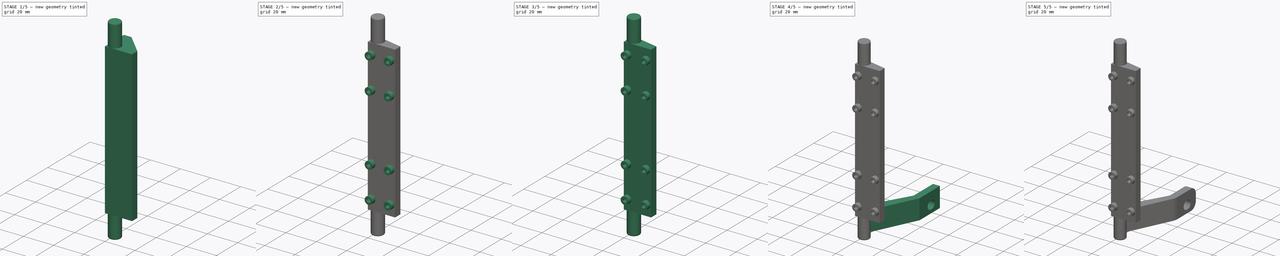
[diagram: build sequence overview — one tinted view per stage of 5, left to right]
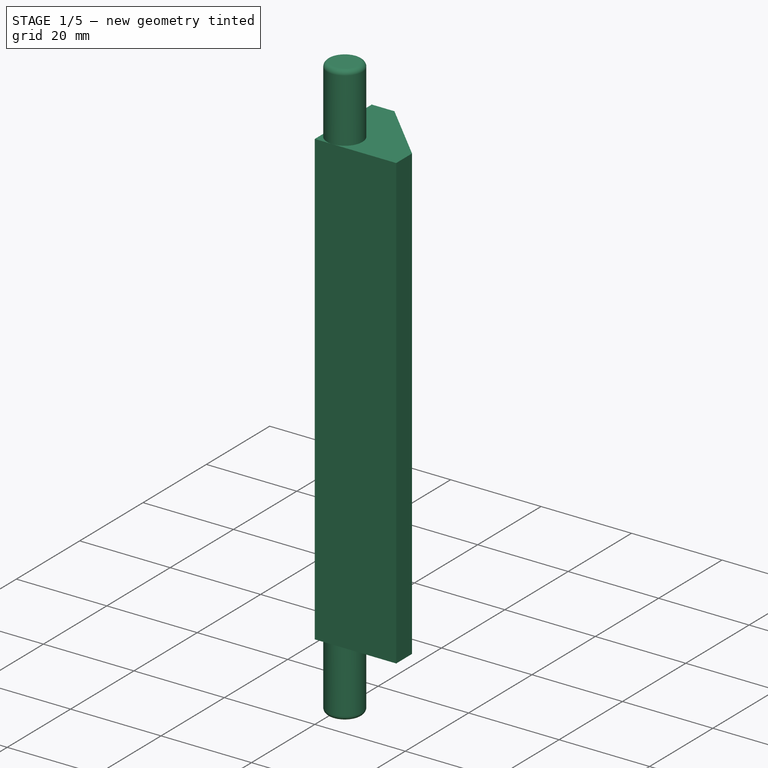
[diagram: stage 1 of 5 — iso view after this stage's code; geometry added in this stage tinted green]
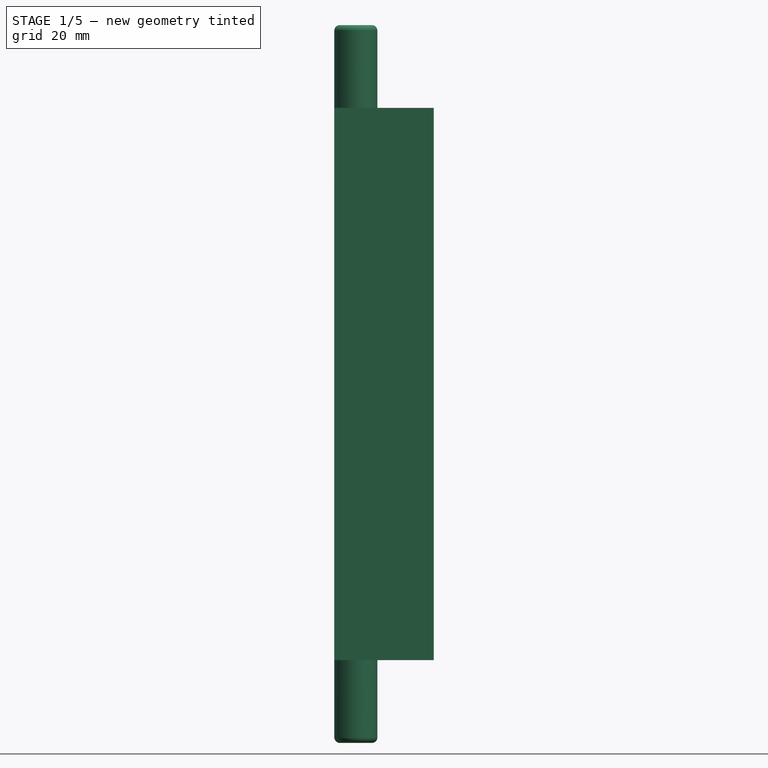
[diagram: stage 1 of 5 — front view after this stage's code; geometry added in this stage tinted green]
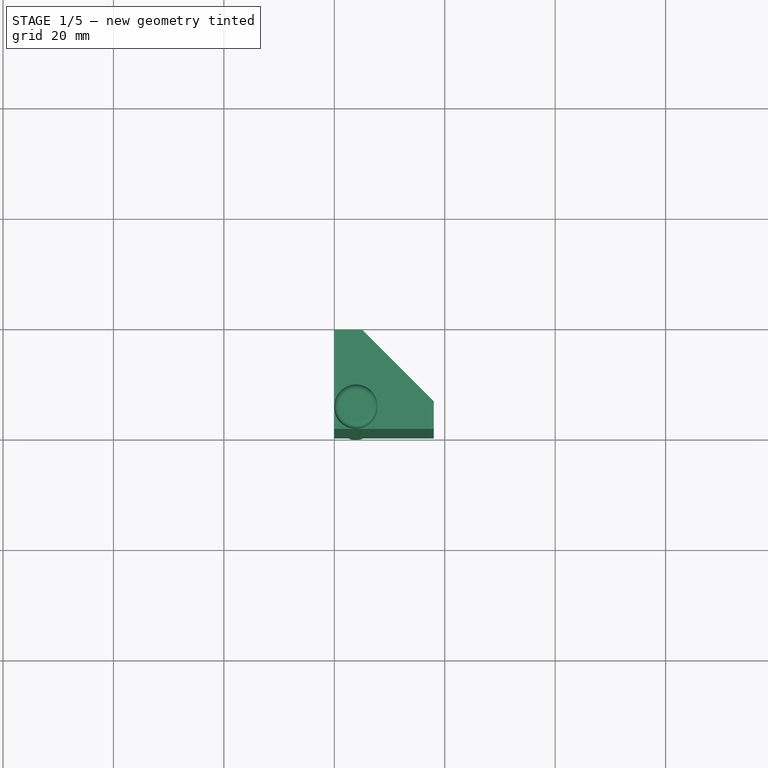
[diagram: stage 1 of 5 — top view after this stage's code; geometry added in this stage tinted green]
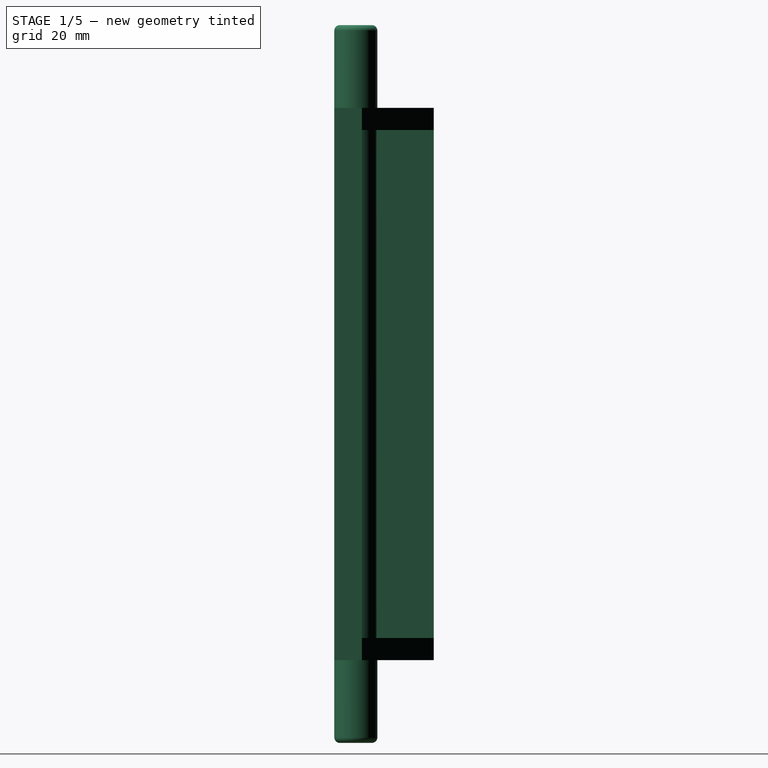
[diagram: stage 1 of 5 — right view after this stage's code; geometry added in this stage tinted green]
FCSTD DOCUMENT  (FreeCAD 0.17R9822 (Git))
Label: StereoVisionCarCameraMount
License: All rights reserved
LicenseURL: http://en.wikipedia.org/wiki/All_rights_reserved
objects: Sketcher::SketchObject×9, PartDesign::Pocket×9, PartDesign::Pad×5, PartDesign::Fillet×5, PartDesign::Body×1
note: 43 computed .brp shape members not serialized (recipe doc carries the construction recipe); baked Part::Feature solids carry a one-line shape summary decoded from their .brp

FEATURE [Sketcher::SketchObject] Sketch
  MapMode = 5
  Support = -> [XY_Plane]
  sketch-geometry (5):
    g0: LineSegment StartX=0 StartY=0 StartZ=0 EndX=18 EndY=0 EndZ=0
    g1: LineSegment StartX=0 StartY=18 StartZ=0 EndX=0 EndY=0 EndZ=0
    g2: LineSegment StartX=0 StartY=18 StartZ=0 EndX=5 EndY=18 EndZ=0
    g3: LineSegment StartX=5 StartY=18 StartZ=0 EndX=18 EndY=5 EndZ=0
    g4: LineSegment StartX=18 StartY=5 StartZ=0 EndX=18 EndY=0 EndZ=0
  constraints (14):
    c: Coincident(g-1,g0)
    c: PointOnObject(g0,g-1)
    c: Coincident(g1,g0)
    c: Vertical(g1)
    c: Coincident(g1,g2)
    c: Horizontal(g2)
    c: Coincident(g2,g3)
    c: Coincident(g3,g4)
    c: Coincident(g4,g0)
    c: Vertical(g4)
    c: Angle(g3) = -0.785398
    c: Equal(g2,g4)
    c: Distance(g2) = 5
    c: Distance(g1) = 18
FEATURE [PartDesign::Pad] Pad
  Length = 100
  Length2 = 100
  Profile = -> Sketch
  Type = 0
FEATURE [Sketcher::SketchObject] Sketch001
  ExternalGeometry = -> [Pad]
  MapMode = 5
  Placement = pos=(0,18,0) rot=(0,0.707107,0.707107;3.14159rad)
  Support = -> [Pad]
  sketch-geometry (6):
    g0: LineSegment StartX=-5 StartY=96 StartZ=0 EndX=-18 EndY=96 EndZ=0
    g1: LineSegment StartX=-18 StartY=96 StartZ=0 EndX=-18 EndY=4 EndZ=0
    g2: LineSegment StartX=-18 StartY=4 StartZ=0 EndX=-5 EndY=4 EndZ=0
    g3: LineSegment StartX=-5 StartY=4 StartZ=0 EndX=-5 EndY=96 EndZ=0
    g4: LineSegment [constr] StartX=-18 StartY=100 StartZ=0 EndX=-18 EndY=96 EndZ=0
    g5: LineSegment [constr] StartX=-18 StartY=0 StartZ=0 EndX=-18 EndY=4 EndZ=0
  constraints (18):
    c: Coincident(g0,g1)
    c: Coincident(g1,g2)
    c: Coincident(g2,g3)
    c: Coincident(g3,g0)
    c: Horizontal(g0)
    c: Horizontal(g2)
    c: Vertical(g1)
    c: Vertical(g3)
    c: PointOnObject(g0,g-3)
    c: Coincident(g4,g-4)
    c: PointOnObject(g4,g0)
    c: Coincident(g5,g-5)
    c: PointOnObject(g5,g2)
    c: Vertical(g5)
    c: Vertical(g4)
    c: Equal(g4,g5)
    c: Distance(g5) = 4
    c: PointOnObject(g1,g-6)
FEATURE [PartDesign::Pocket] Pocket
  BaseFeature = -> Pad
  Length = 13
  Profile = -> Sketch001
  Type = 0
FEATURE [Sketcher::SketchObject] Sketch002
  ExternalGeometry = -> [Pocket]
  MapMode = 5
  Placement = pos=(0,0,100) rot=(0,0,1;0rad)
  Support = -> [Pocket]
  sketch-geometry (1):
    g0: Circle CenterX=3.9 CenterY=3.9 CenterZ=0 NormalX=0 NormalY=0 NormalZ=1 Radius=3.9
  constraints (3):
    c: Radius(g0) = 3.9
    c: Tangent(g0,g-3)
    c: Tangent(g0,g-4)
FEATURE [PartDesign::Pad] Pad001
  BaseFeature = -> Pocket
  Length = 15
  Length2 = 115
  Profile = -> Sketch002
  Type = 4
FEATURE [PartDesign::Fillet] Fillet
  Base = -> Pad001 [Edge43,Edge31]
  BaseFeature = -> Pad001
  Radius = 1
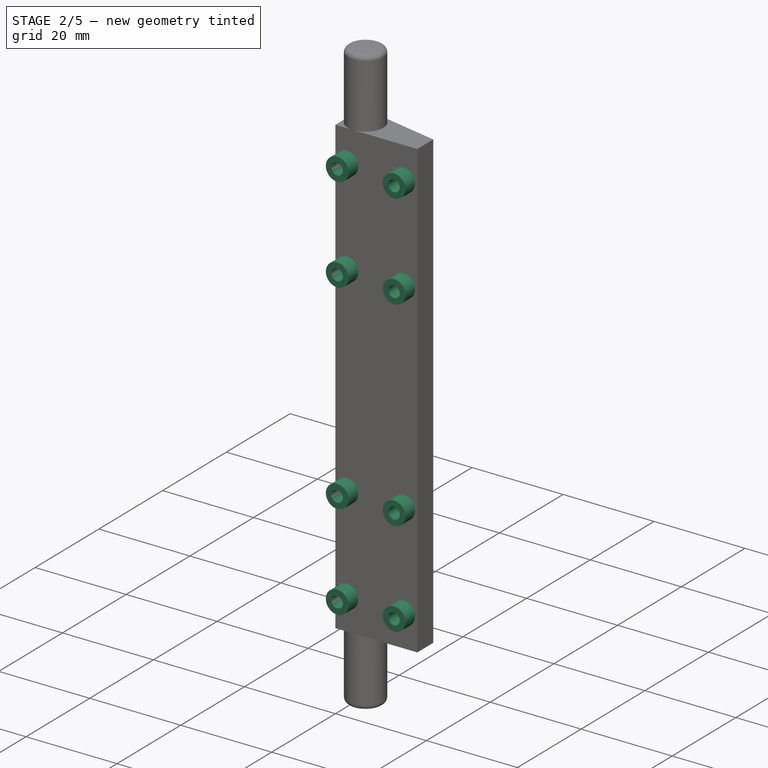
[diagram: stage 2 of 5 — iso view after this stage's code; geometry added in this stage tinted green]
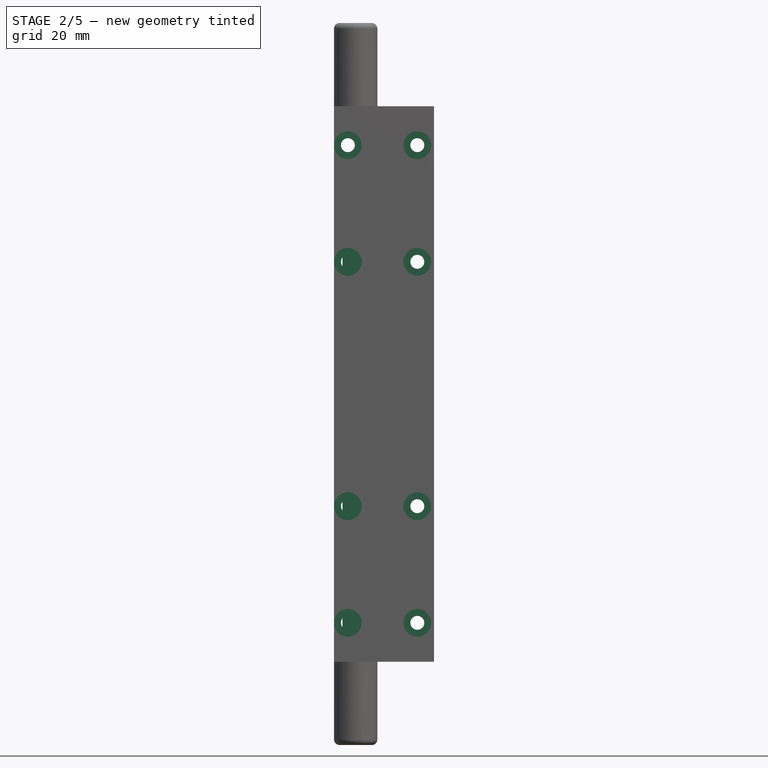
[diagram: stage 2 of 5 — front view after this stage's code; geometry added in this stage tinted green]
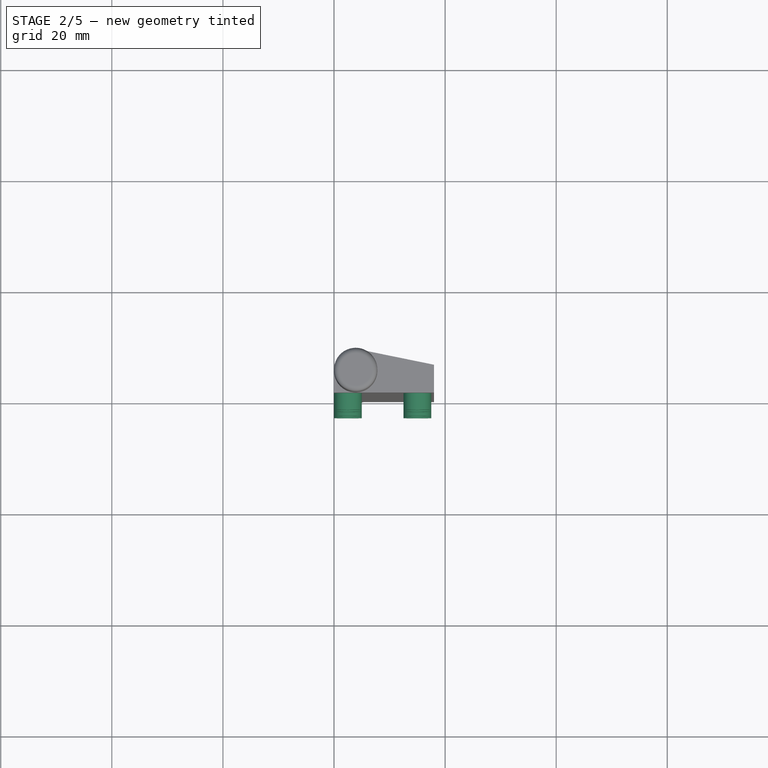
[diagram: stage 2 of 5 — top view after this stage's code; geometry added in this stage tinted green]
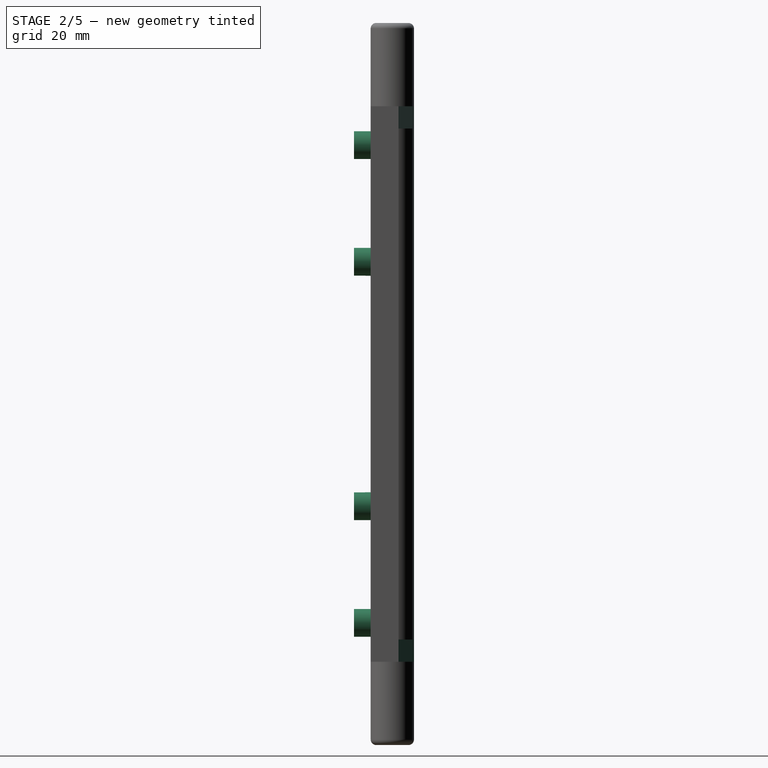
[diagram: stage 2 of 5 — right view after this stage's code; geometry added in this stage tinted green]
FEATURE [Sketcher::SketchObject] Sketch003
  ExternalGeometry = -> [Fillet]
  MapMode = 5
  Placement = pos=(0,0,0) rot=(1,0,0;1.5708rad)
  Support = -> [Fillet]
  sketch-geometry (19):
    g0: LineSegment [constr] StartX=2.5 StartY=93 StartZ=0 EndX=15 EndY=93 EndZ=0
    g1: LineSegment [constr] StartX=15 StartY=93 StartZ=0 EndX=15 EndY=72 EndZ=0
    g2: LineSegment [constr] StartX=15 StartY=72 StartZ=0 EndX=2.5 EndY=72 EndZ=0
    g3: LineSegment [constr] StartX=2.5 StartY=72 StartZ=0 EndX=2.5 EndY=93 EndZ=0
    g4: LineSegment [constr] StartX=2.5 StartY=28 StartZ=0 EndX=15 EndY=28 EndZ=0
    g5: LineSegment [constr] StartX=15 StartY=28 StartZ=0 EndX=15 EndY=7 EndZ=0
    g6: LineSegment [constr] StartX=15 StartY=7 StartZ=0 EndX=2.5 EndY=7 EndZ=0
    g7: LineSegment [constr] StartX=2.5 StartY=7 StartZ=0 EndX=2.5 EndY=28 EndZ=0
    g8: Circle CenterX=2.5 CenterY=93 CenterZ=0 NormalX=0 NormalY=0 NormalZ=1 Radius=2.5
    g9: Circle CenterX=15 CenterY=93 CenterZ=0 NormalX=0 NormalY=0 NormalZ=1 Radius=2.5
    g10: Circle CenterX=15 CenterY=72 CenterZ=0 NormalX=0 NormalY=0 NormalZ=1 Radius=2.5
    g11: Circle CenterX=2.5 CenterY=72 CenterZ=0 NormalX=0 NormalY=0 NormalZ=1 Radius=2.5
    g12: Circle CenterX=15 CenterY=7 CenterZ=0 NormalX=0 NormalY=0 NormalZ=1 Radius=2.5
    g13: Circle CenterX=15 CenterY=28 CenterZ=0 NormalX=0 NormalY=0 NormalZ=1 Radius=2.5
    g14: Circle CenterX=2.5 CenterY=7 CenterZ=0 NormalX=0 NormalY=0 NormalZ=1 Radius=2.5
    g15: Circle CenterX=2.5 CenterY=28 CenterZ=0 NormalX=0 NormalY=0 NormalZ=1 Radius=2.5
    g16: LineSegment [constr] StartX=2.5 StartY=28 StartZ=0 EndX=2.5 EndY=72 EndZ=0
    g17: LineSegment [constr] StartX=2.5 StartY=7 StartZ=0 EndX=2.5 EndY=0 EndZ=0
    g18: LineSegment [constr] StartX=2.5 StartY=93 StartZ=0 EndX=2.5 EndY=100 EndZ=0
  constraints (48):
    c: Coincident(g0,g1)
    c: Coincident(g1,g2)
    c: Coincident(g2,g3)
    c: Coincident(g3,g0)
    c: Horizontal(g0)
    c: Horizontal(g2)
    c: Vertical(g1)
    c: Vertical(g3)
    c: Coincident(g4,g5)
    c: Coincident(g5,g6)
    c: Coincident(g6,g7)
    c: Coincident(g7,g4)
    c: Horizontal(g4)
    c: Horizontal(g6)
    c: Vertical(g5)
    c: Vertical(g7)
    c: Coincident(g8,g0)
    c: Coincident(g9,g0)
    c: Coincident(g10,g1)
    c: Coincident(g11,g2)
    c: Coincident(g12,g5)
    c: Coincident(g14,g6)
    c: Coincident(g15,g4)
    c: Coincident(g4,g13)
    c: Radius(g12) = 2.5
    c: Equal(g12,g14)
    c: Equal(g12,g15)
    c: Equal(g12,g13)
    c: Equal(g12,g10)
    c: Equal(g12,g11)
    c: Equal(g12,g8)
    c: Equal(g12,g9)
    c: Equal(g4,g2)
    c: Equal(g5,g1)
    c: Coincident(g16,g4)
    c: Coincident(g16,g2)
    c: Vertical(g16)
    c: Coincident(g17,g6)
    c: PointOnObject(g17,g-5)
    c: Vertical(g17)
    c: Coincident(g18,g0)
    c: PointOnObject(g18,g-4)
    c: Vertical(g18)
    c: Equal(g18,g17)
    c: Tangent(g14,g-3)
    c: Distance(g4) = 12.5
    c: Distance(g5) = 21
    c: Distance(g16) = 44
FEATURE [PartDesign::Pad] Pad002
  BaseFeature = -> Fillet
  Length = 3
  Length2 = 100
  Profile = -> Sketch003
  Type = 0
FEATURE [Sketcher::SketchObject] Sketch004
  ExternalGeometry = -> [Pad002]
  MapMode = 5
  Placement = pos=(0,-3,0) rot=(1,0,0;1.5708rad)
  Support = -> [Pad002]
  sketch-geometry (8):
    g0: Circle CenterX=2.5 CenterY=93 CenterZ=0 NormalX=0 NormalY=0 NormalZ=1 Radius=1.25
    g1: Circle CenterX=15 CenterY=93 CenterZ=0 NormalX=0 NormalY=0 NormalZ=1 Radius=1.25
    g2: Circle CenterX=2.5 CenterY=72 CenterZ=0 NormalX=0 NormalY=0 NormalZ=1 Radius=1.25
    g3: Circle CenterX=15 CenterY=72 CenterZ=0 NormalX=0 NormalY=0 NormalZ=1 Radius=1.25
    g4: Circle CenterX=15 CenterY=28 CenterZ=0 NormalX=0 NormalY=0 NormalZ=1 Radius=1.25
    g5: Circle CenterX=2.5 CenterY=28 CenterZ=0 NormalX=0 NormalY=0 NormalZ=1 Radius=1.25
    g6: Circle CenterX=15 CenterY=7 CenterZ=0 NormalX=0 NormalY=0 NormalZ=1 Radius=1.25
    g7: Circle CenterX=2.5 CenterY=7 CenterZ=0 NormalX=0 NormalY=0 NormalZ=1 Radius=1.25
  constraints (12):
    c: Coincident(g0,g-10)
    c: Coincident(g1,g-9)
    c: Coincident(g2,g-8)
    c: Coincident(g3,g-7)
    c: Coincident(g4,g-6)
    c: Coincident(g5,g-5)
    c: Coincident(g6,g-3)
    c: Coincident(g7,g-4)
    c: Radius(g0) = 1.25
    c: Equal(g0,g1)
    c: Equal(g0, g3-g7) x5
    c: Equal(g0,g2)
FEATURE [PartDesign::Pocket] Pocket001
  BaseFeature = -> Pad002
  Length = 10
  Profile = -> Sketch004
  Type = 0
FEATURE [Sketcher::SketchObject] Sketch005
  ExternalGeometry = -> [Pocket001]
  MapMode = 5
  Placement = pos=(0,0,115) rot=(0,0,1;0rad)
  Support = -> [Pocket001]
  sketch-geometry (6):
    g0: LineSegment StartX=4.6806 StartY=7.72108 StartZ=0 EndX=18 EndY=5 EndZ=0
    g1: ArcOfCircle CenterX=3.9 CenterY=3.9 CenterZ=0 NormalX=0 NormalY=0 NormalZ=1 Radius=3.9 StartAngle=1.36928 EndAngle=3.14159
    g2: LineSegment StartX=-5 StartY=20 StartZ=0 EndX=18 EndY=20 EndZ=0
    g3: LineSegment StartX=18 StartY=5 StartZ=0 EndX=18 EndY=20 EndZ=0
    g4: LineSegment StartX=0 StartY=3.9 StartZ=0 EndX=-5 EndY=3.9 EndZ=0
    g5: LineSegment StartX=-5 StartY=3.9 StartZ=0 EndX=-5 EndY=20 EndZ=0
  constraints (17):
    c: PointOnObject(g0,g-5)
    c: Coincident(g0,g-4)
    c: Tangent(g0,g-5)
    c: Coincident(g1,g-6)
    c: Coincident(g1,g0)
    c: Horizontal(g2)
    c: Coincident(g3,g0)
    c: Coincident(g3,g2)
    c: Vertical(g3)
    c: Coincident(g4,g1)
    c: Horizontal(g4)
    c: Coincident(g5,g4)
    c: Coincident(g5,g2)
    c: Vertical(g5)
    c: Distance(g3) = 15
    c: Distance(g4) = 5
    c: Perpendicular(g-5,g4)
FEATURE [PartDesign::Pocket] Pocket002
  BaseFeature = -> Pocket001
  Length = 5
  Profile = -> Sketch005
  Type = 1
FEATURE [PartDesign::Pocket] Pocket003
  BaseFeature = -> Pocket002
  Length = 5
  Profile = -> Pocket002 [Face15]
  Type = 1
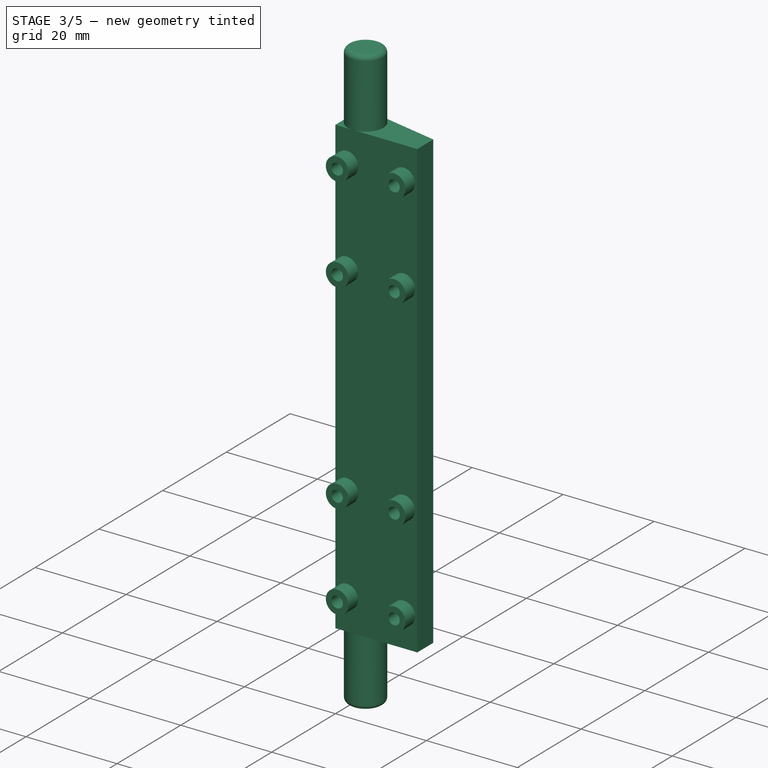
[diagram: stage 3 of 5 — iso view after this stage's code; geometry added in this stage tinted green]
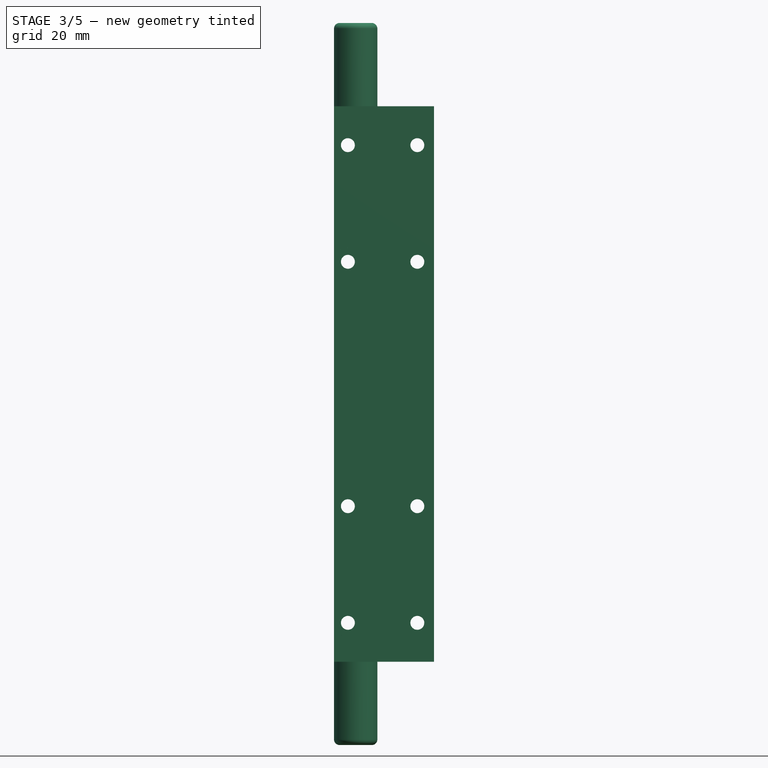
[diagram: stage 3 of 5 — front view after this stage's code; geometry added in this stage tinted green]
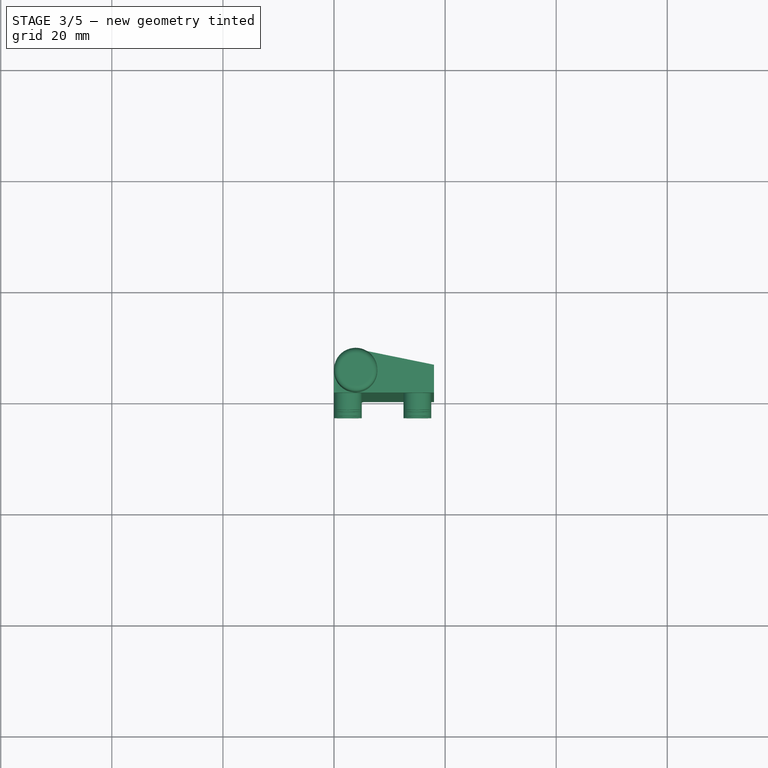
[diagram: stage 3 of 5 — top view after this stage's code; geometry added in this stage tinted green]
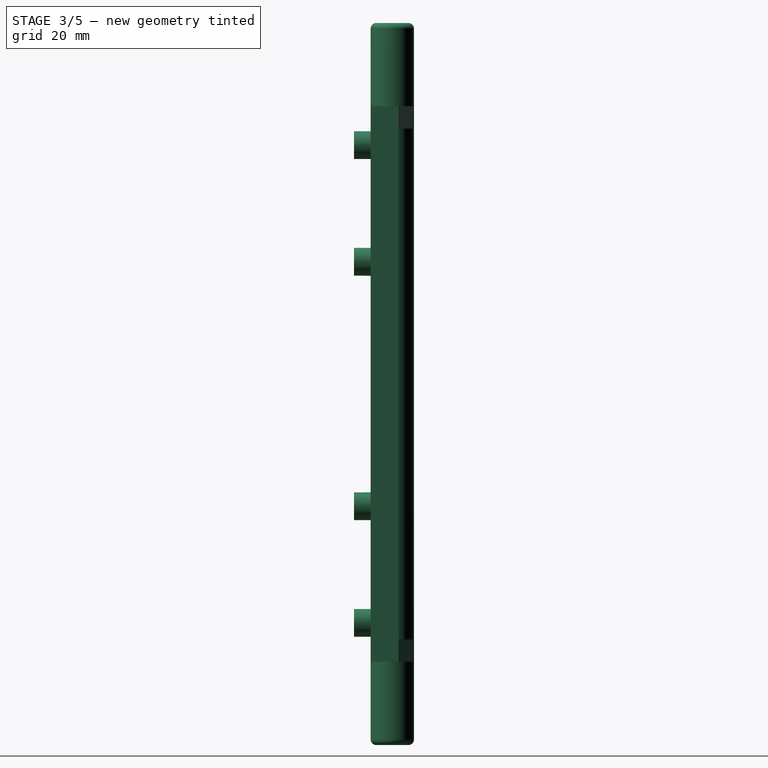
[diagram: stage 3 of 5 — right view after this stage's code; geometry added in this stage tinted green]
FEATURE [PartDesign::Pocket] Pocket004
  BaseFeature = -> Pocket003
  Length = 5
  Profile = -> Pocket003 [Face15]
  Type = 1
FEATURE [PartDesign::Pocket] Pocket005
  BaseFeature = -> Pocket004
  Length = 5
  Profile = -> Pocket004 [Face21]
  Type = 1
FEATURE [PartDesign::Pocket] Pocket006
  BaseFeature = -> Pocket005
  Length = 5
  Profile = -> Pocket005 [Face24]
  Type = 1
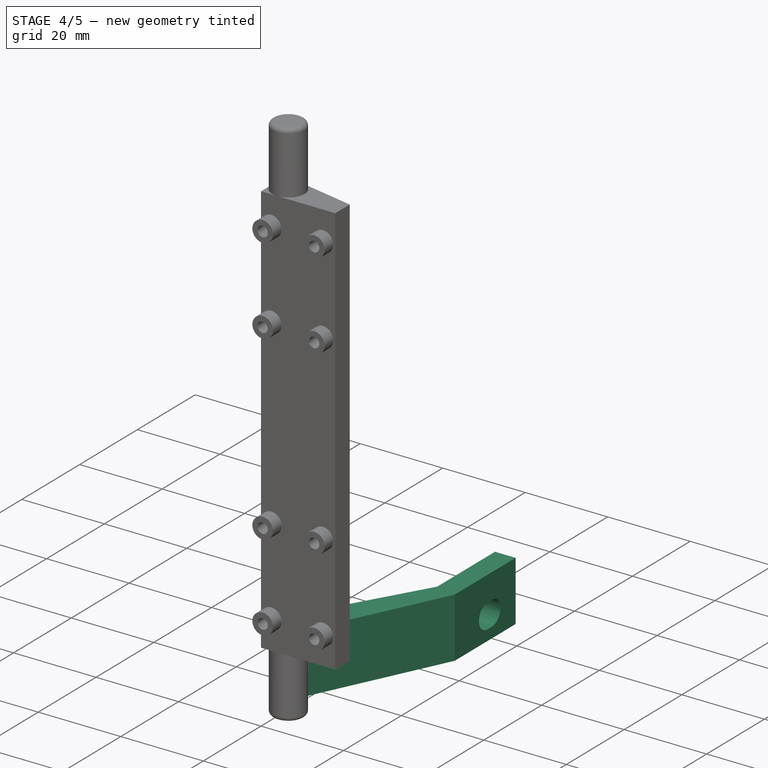
[diagram: stage 4 of 5 — iso view after this stage's code; geometry added in this stage tinted green]
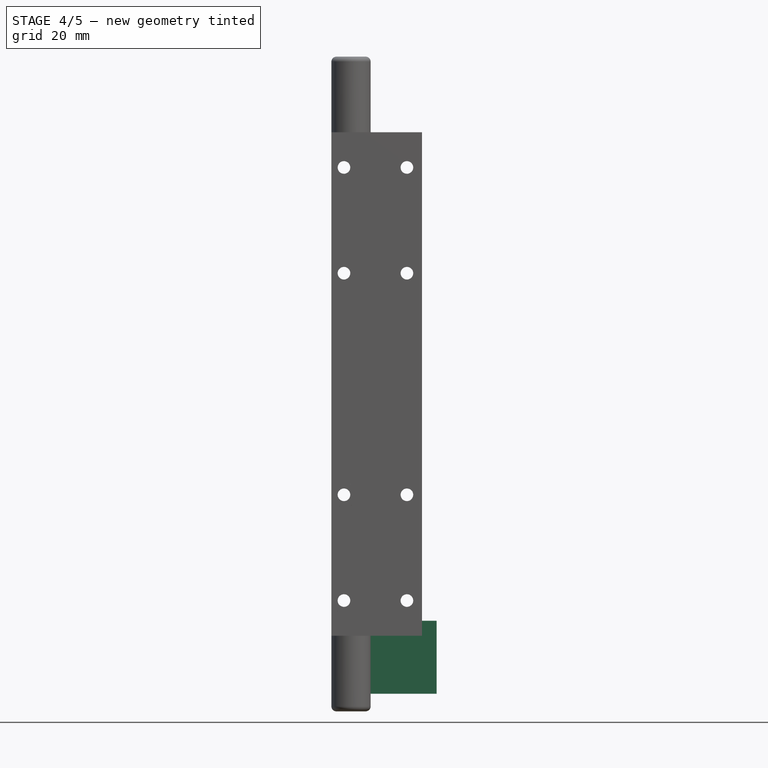
[diagram: stage 4 of 5 — front view after this stage's code; geometry added in this stage tinted green]
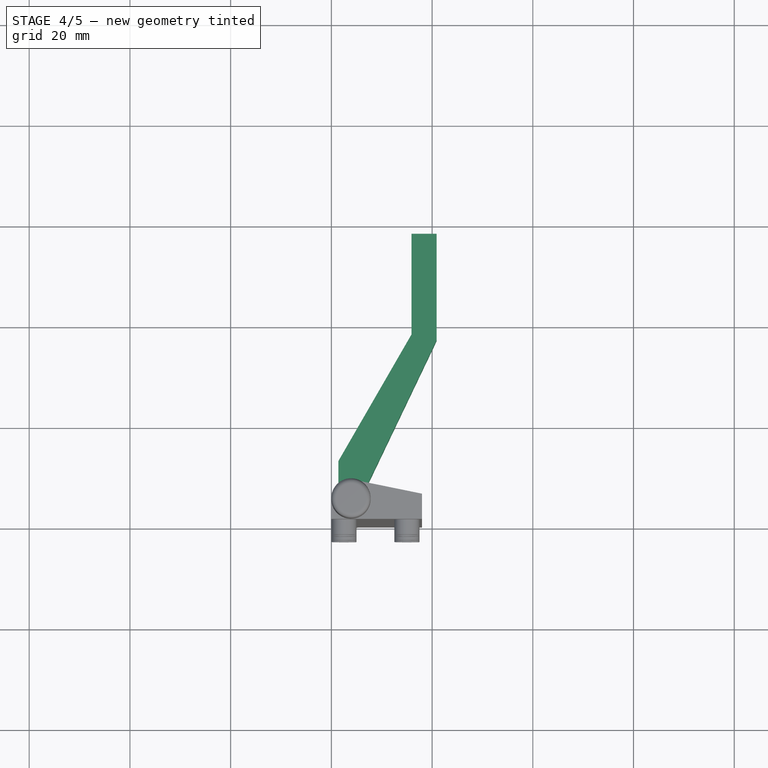
[diagram: stage 4 of 5 — top view after this stage's code; geometry added in this stage tinted green]
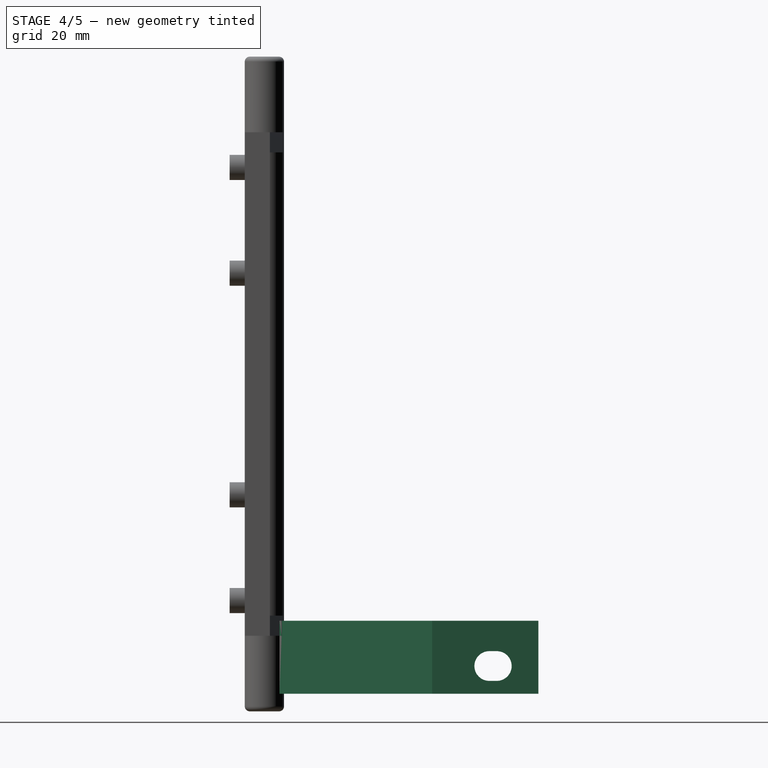
[diagram: stage 4 of 5 — right view after this stage's code; geometry added in this stage tinted green]
FEATURE [Sketcher::SketchObject] Sketch006
  ExternalGeometry = -> [Pocket006]
  MapMode = 5
  Placement = pos=(0,5,0) rot=(0,0.707107,0.707107;3.14159rad)
  Support = -> [Pocket006]
  sketch-geometry (12):
    g0: LineSegment StartX=-6.4 StartY=-11.5 StartZ=0 EndX=-1.4 EndY=-11.5 EndZ=0
    g1: LineSegment StartX=-1.4 StartY=-11.5 StartZ=0 EndX=-1.4 EndY=3 EndZ=0
    g2: LineSegment StartX=-1.4 StartY=3 StartZ=0 EndX=-6.4 EndY=3 EndZ=0
    g3: LineSegment StartX=-6.4 StartY=3 StartZ=0 EndX=-6.4 EndY=-11.5 EndZ=0
    g4: LineSegment [constr] StartX=-1.4 StartY=-11.5 StartZ=0 EndX=0 EndY=-11.5 EndZ=0
    g5: LineSegment [constr] StartX=0 StartY=-11.5 StartZ=0 EndX=0 EndY=0 EndZ=0
    g6: LineSegment [constr] StartX=0 StartY=0 StartZ=0 EndX=-1.4 EndY=0 EndZ=0
    g7: LineSegment [constr] StartX=-1.4 StartY=0 StartZ=0 EndX=-1.4 EndY=-11.5 EndZ=0
    g8: LineSegment [constr] StartX=-7.8 StartY=0 StartZ=0 EndX=-6.4 EndY=0 EndZ=0
    g9: LineSegment [constr] StartX=-6.4 StartY=0 StartZ=0 EndX=-6.4 EndY=-11.5 EndZ=0
    g10: LineSegment [constr] StartX=-6.4 StartY=-11.5 StartZ=0 EndX=-7.8 EndY=-11.5 EndZ=0
    g11: LineSegment [constr] StartX=-7.8 StartY=-11.5 StartZ=0 EndX=-7.8 EndY=0 EndZ=0
  constraints (32):
    c: Coincident(g0,g1)
    c: Coincident(g1,g2)
    c: Coincident(g2,g3)
    c: Coincident(g3,g0)
    c: Horizontal(g0)
    c: Horizontal(g2)
    c: Vertical(g1)
    c: Vertical(g3)
    c: Coincident(g4,g5)
    c: Coincident(g5,g6)
    c: Coincident(g6,g7)
    c: Coincident(g7,g4)
    c: Horizontal(g4)
    c: Horizontal(g6)
    c: Vertical(g5)
    c: Vertical(g7)
    c: Coincident(g4,g0)
    c: Coincident(g5,g-1)
    c: Coincident(g8,g9)
    c: Coincident(g9,g10)
    c: Coincident(g10,g11)
    c: Coincident(g11,g8)
    c: Horizontal(g8)
    c: Horizontal(g10)
    c: Vertical(g9)
    c: Vertical(g11)
    c: Coincident(g8,g-5)
    c: Coincident(g9,g0)
    c: Equal(g4,g10)
    c: Distance(g0) = 5
    c: DistanceY(g-6,g4) = 2.5
    c: Distance(g1) = 14.5
FEATURE [PartDesign::Pad] Pad003
  BaseFeature = -> Pocket006
  Length = 53.3
  Length2 = 100
  Profile = -> Sketch006
  Type = 0
FEATURE [Sketcher::SketchObject] Sketch007
  ExternalGeometry = -> [Pad003]
  MapMode = 5
  Placement = pos=(6.4,0,0) rot=(0.57735,0.57735,0.57735;2.0944rad)
  Support = -> [Pad003]
  sketch-geometry (8):
    g0: LineSegment StartX=48.55 StartY=-3.05 StartZ=0 EndX=50.05 EndY=-3.05 EndZ=0
    g1: LineSegment StartX=48.55 StartY=-8.95 StartZ=0 EndX=50.05 EndY=-8.95 EndZ=0
    g2: ArcOfCircle CenterX=48.55 CenterY=-6 CenterZ=0 NormalX=0 NormalY=0 NormalZ=1 Radius=2.95 StartAngle=1.5708 EndAngle=4.71239
    g3: ArcOfCircle CenterX=50.05 CenterY=-6 CenterZ=0 NormalX=0 NormalY=0 NormalZ=1 Radius=2.95 StartAngle=4.71239 EndAngle=7.85398
    g4: LineSegment [constr] StartX=48.55 StartY=-6 StartZ=0 EndX=49.3 EndY=-6 EndZ=0
    g5: LineSegment [constr] StartX=50.05 StartY=-6 StartZ=0 EndX=49.3 EndY=-6 EndZ=0
    g6: LineSegment [constr] StartX=3.9 StartY=-14 StartZ=0 EndX=49.3 EndY=-14 EndZ=0
    g7: LineSegment [constr] StartX=49.3 StartY=-6 StartZ=0 EndX=49.3 EndY=-14 EndZ=0
  constraints (24):
    c: Horizontal(g1)
    c: Horizontal(g0)
    c: Coincident(g2,g0)
    c: Coincident(g2,g1)
    c: Coincident(g3,g1)
    c: Coincident(g3,g0)
    c: Tangent(g2,g0)
    c: Tangent(g3,g1)
    c: Distance(g0) = 1.5
    c: Tangent(g3,g0)
    c: Tangent(g2,g1)
    c: Coincident(g4,g2)
    c: Horizontal(g4)
    c: Coincident(g5,g3)
    c: Coincident(g5,g4)
    c: Equal(g5,g4)
    c: Radius(g3) = 2.95
    c: Coincident(g6,g-3)
    c: Horizontal(g6)
    c: Distance(g6) = 45.4
    c: Coincident(g7,g4)
    c: Coincident(g7,g6)
    c: Vertical(g7)
    c: Distance(g7) = 8
FEATURE [PartDesign::Pocket] Pocket007
  BaseFeature = -> Pad003
  Length = 5
  Profile = -> Sketch007
  Type = 1
FEATURE [PartDesign::Pad] Pad004
  BaseFeature = -> Pocket007
  Length = 14.5
  Length2 = 100
  Profile = -> Pocket007 [Face11]
  Type = 0
FEATURE [Sketcher::SketchObject] Sketch008
  ExternalGeometry = -> [Pad004]
  MapMode = 5
  Placement = pos=(0,0,-11.5) rot=(1,0,0;3.14159rad)
  Support = -> [Pad004]
  sketch-geometry (20):
    g0: LineSegment StartX=15.9 StartY=-58.3 StartZ=0 EndX=15.9 EndY=-38.3 EndZ=0
    g1: LineSegment StartX=15.9 StartY=-38.3 StartZ=0 EndX=1.4 EndY=-13.1853 EndZ=0
    g2: LineSegment StartX=6.4 StartY=-6.89333 StartZ=0 EndX=32.3831 EndY=-6.89333 EndZ=0
    g3: LineSegment StartX=32.3831 StartY=-6.89333 StartZ=0 EndX=32.3831 EndY=-68.3 EndZ=0
    g4: LineSegment StartX=32.3831 StartY=-68.3 StartZ=0 EndX=-8.6 EndY=-68.3 EndZ=0
    g5: LineSegment StartX=-8.6 StartY=-68.3 StartZ=0 EndX=-8.6 EndY=-13.1853 EndZ=0
    g6: LineSegment StartX=-8.6 StartY=-13.1853 StartZ=0 EndX=1.4 EndY=-13.1853 EndZ=0
    g7: LineSegment StartX=6.4 StartY=-6.89333 StartZ=0 EndX=22.3831 EndY=-40.3 EndZ=0
    g8: LineSegment StartX=15.9 StartY=-58.3 StartZ=0 EndX=22.3831 EndY=-58.3 EndZ=0
    g9: LineSegment StartX=22.3831 StartY=-58.3 StartZ=0 EndX=22.3831 EndY=-40.3 EndZ=0
    g10: LineSegment [constr] StartX=15.9 StartY=-38.3 StartZ=0 EndX=20.9 EndY=-38.3 EndZ=0
    g11: LineSegment [constr] StartX=22.3831 StartY=-58.3 StartZ=0 EndX=32.3831 EndY=-58.3 EndZ=0
    g12: LineSegment [constr] StartX=32.3831 StartY=-58.3 StartZ=0 EndX=32.3831 EndY=-68.3 EndZ=0
    g13: LineSegment [constr] StartX=32.3831 StartY=-68.3 StartZ=0 EndX=22.3831 EndY=-68.3 EndZ=0
    g14: LineSegment [constr] StartX=22.3831 StartY=-68.3 StartZ=0 EndX=22.3831 EndY=-58.3 EndZ=0
    g15: LineSegment [constr] StartX=-8.6 StartY=-68.3 StartZ=0 EndX=1.4 EndY=-68.3 EndZ=0
    g16: LineSegment [constr] StartX=1.4 StartY=-68.3 StartZ=0 EndX=1.4 EndY=-58.3 EndZ=0
    g17: LineSegment [constr] StartX=1.4 StartY=-58.3 StartZ=0 EndX=-8.6 EndY=-58.3 EndZ=0
    g18: LineSegment [constr] StartX=-8.6 StartY=-58.3 StartZ=0 EndX=-8.6 EndY=-68.3 EndZ=0
    g19: LineSegment [constr] StartX=15.9 StartY=-38.3 StartZ=0 EndX=20.2301 EndY=-35.8 EndZ=0
  constraints (55):
    c: PointOnObject(g0,g-5)
    c: Vertical(g0)
    c: Coincident(g1,g0)
    c: PointOnObject(g1,g-6)
    c: Coincident(g-7,g2)
    c: Coincident(g2,g3)
    c: Vertical(g3)
    c: Coincident(g3,g4)
    c: Horizontal(g4)
    c: Coincident(g4,g5)
    c: Vertical(g5)
    c: Coincident(g5,g6)
    c: Coincident(g6,g1)
    c: Horizontal(g6)
    c: Coincident(g8,g0)
    c: Horizontal(g8)
    c: Coincident(g9,g8)
    c: Coincident(g9,g7)
    c: Vertical(g9)
    c: Coincident(g10,g0)
    c: PointOnObject(g10,g-4)
    c: Horizontal(g10)
    c: Distance(g10) = 5
    c: Angle(g1) = 2.0944
    c: Distance(g0) = 20
    c: Coincident(g11,g12)
    c: Coincident(g12,g13)
    c: Coincident(g13,g14)
    c: Coincident(g14,g11)
    c: Horizontal(g11)
    c: Horizontal(g13)
    c: Vertical(g12)
    c: Vertical(g14)
    c: Coincident(g11,g8)
    c: Coincident(g12,g3)
    c: Coincident(g15,g16)
    c: Coincident(g16,g17)
    c: Coincident(g17,g18)
    c: Coincident(g18,g15)
    c: Horizontal(g15)
    c: Horizontal(g17)
    c: Vertical(g16)
    c: Vertical(g18)
    c: Coincident(g15,g4)
    c: Coincident(g16,g-6)
    c: Equal(g17,g11)
    c: Distance(g11) = 10
    c: Distance(g9) = 18
    c: Equal(g14,g11)
    c: Coincident(g19,g0)
    c: PointOnObject(g19,g7)
    c: Perpendicular(g1,g19)
    c: Distance(g19) = 5
    c: Coincident(g7,g2)
    c: Horizontal(g2)
FEATURE [PartDesign::Pocket] Pocket008
  BaseFeature = -> Pad004
  Length = 15
  Profile = -> Sketch008
  Type = 2
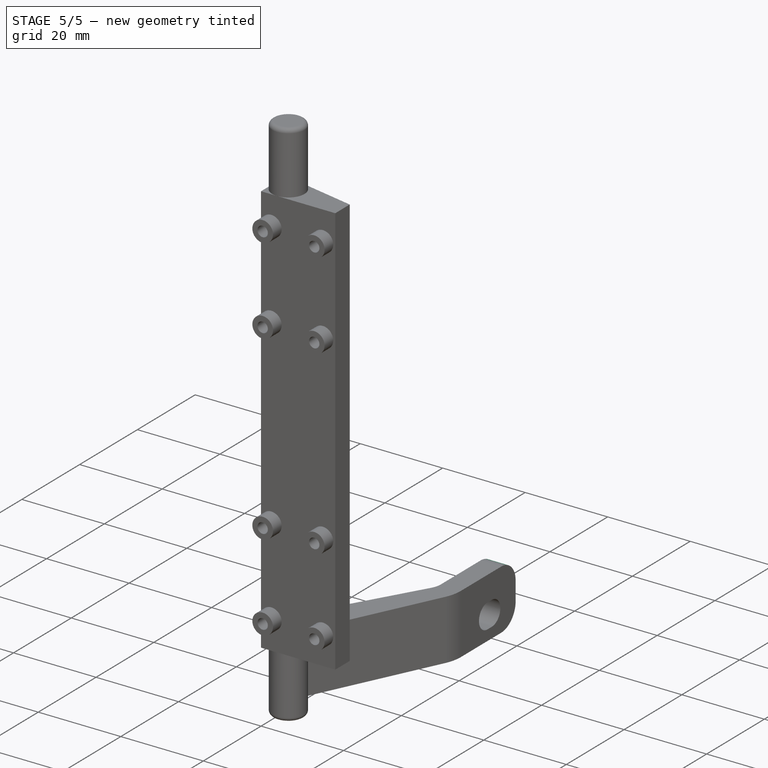
[diagram: stage 5 of 5 — iso view after this stage's code; geometry added in this stage tinted green]
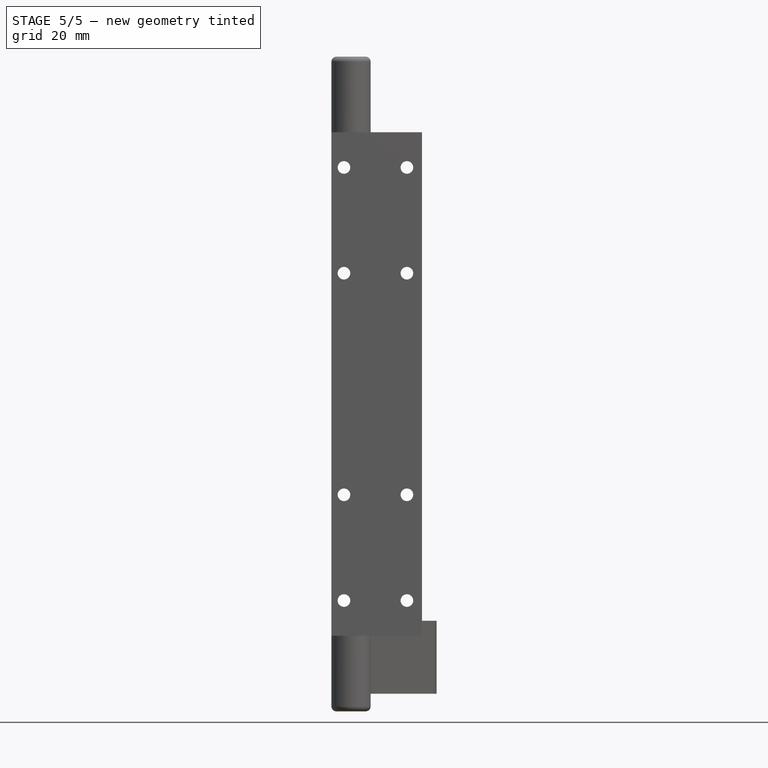
[diagram: stage 5 of 5 — front view after this stage's code; geometry added in this stage tinted green]
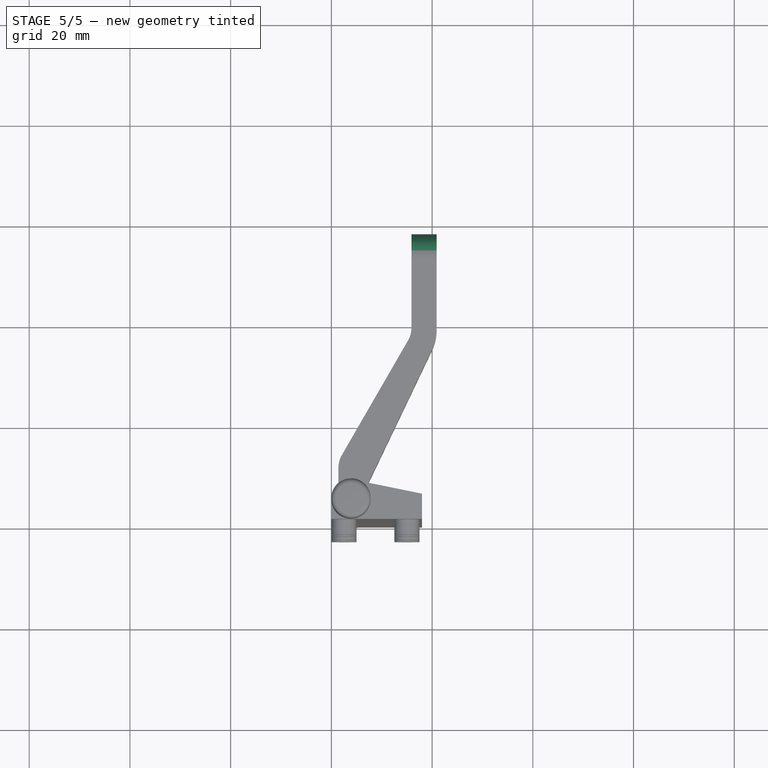
[diagram: stage 5 of 5 — top view after this stage's code; geometry added in this stage tinted green]
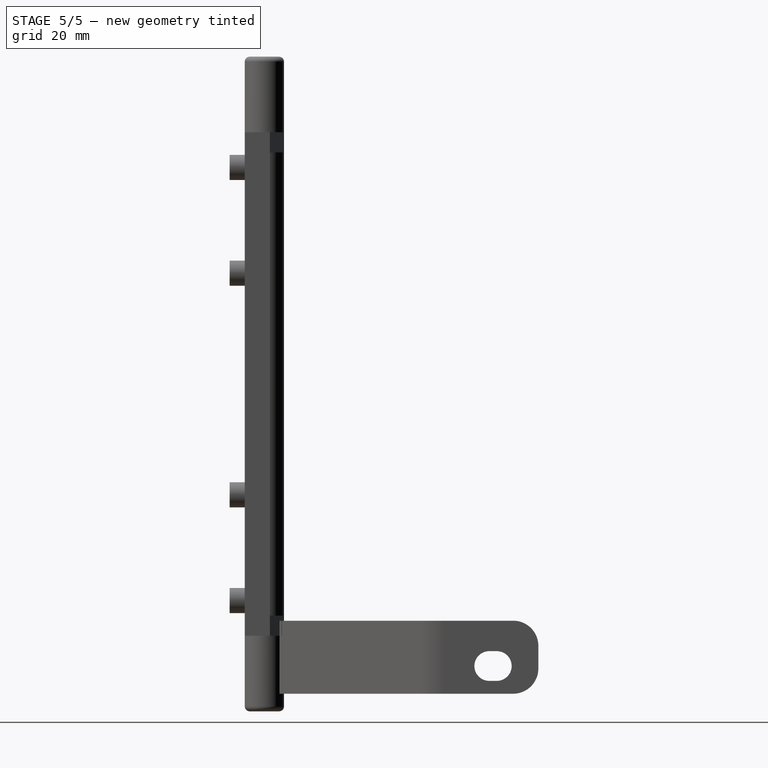
[diagram: stage 5 of 5 — right view after this stage's code; geometry added in this stage tinted green]
FEATURE [PartDesign::Fillet] Fillet001
  Base = -> Pocket008 [Edge28]
  BaseFeature = -> Pocket008
  Radius = 5
FEATURE [PartDesign::Fillet] Fillet002
  Base = -> Fillet001 [Edge19]
  BaseFeature = -> Fillet001
  Radius = 5
FEATURE [PartDesign::Fillet] Fillet003
  Base = -> Fillet002 [Edge35]
  BaseFeature = -> Fillet002
  Radius = 10
FEATURE [PartDesign::Fillet] Fillet004
  Base = -> Fillet003 [Edge6,Edge35]
  BaseFeature = -> Fillet003
  Radius = 5
FEATURE [PartDesign::Body] Body
  Group = -> [Sketch,Pad,Sketch001,Pocket,Sketch002,Pad001,Fillet,Sketch003,Pad002,Sketch004,Pocket001,Sketch005,Pocket002,Pocket003,Pocket004,Pocket005,Pocket006,Sketch006,Pad003,Sketch007,Pocket007,Pad004,Sketch008,Pocket008,Fillet001,Fillet002,Fillet003,Fillet004]
  Origin = -> BodyOrigin
  Tip = -> Fillet004
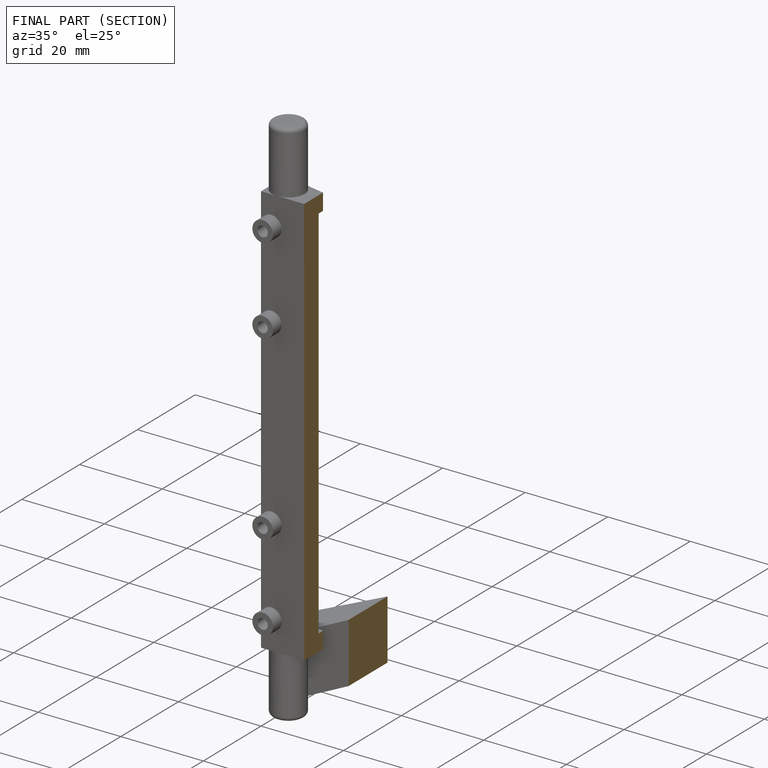
[diagram: finished part — half-section view (interior)]
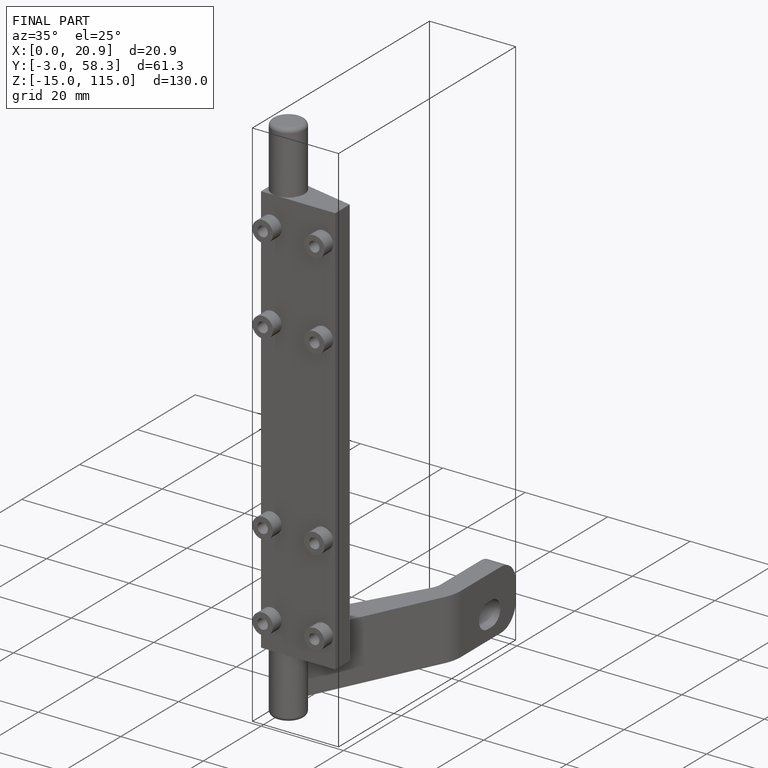
[diagram: finished part — iso view with bounding-box wireframe]
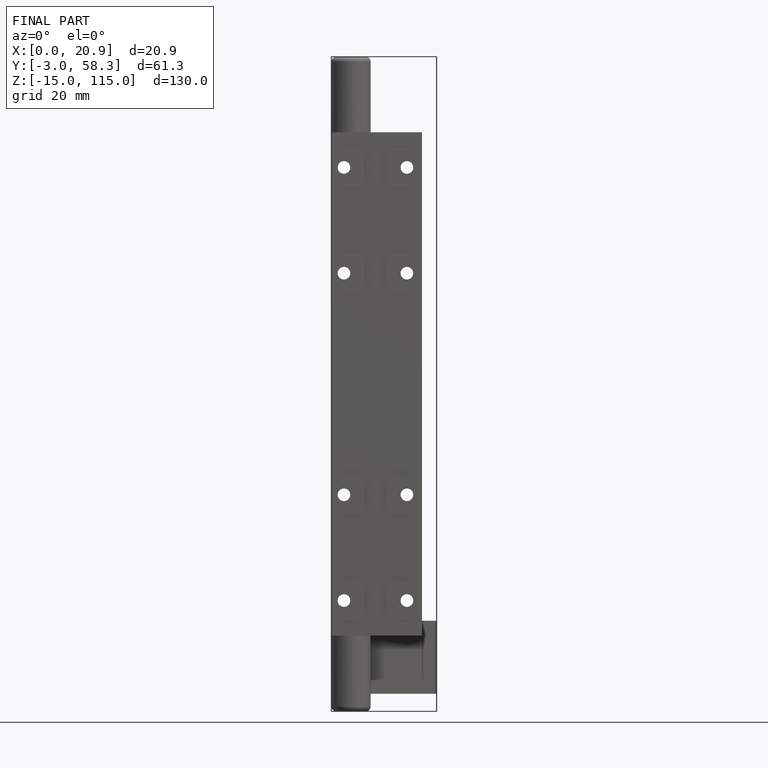
[diagram: finished part — front view with bounding-box wireframe]
